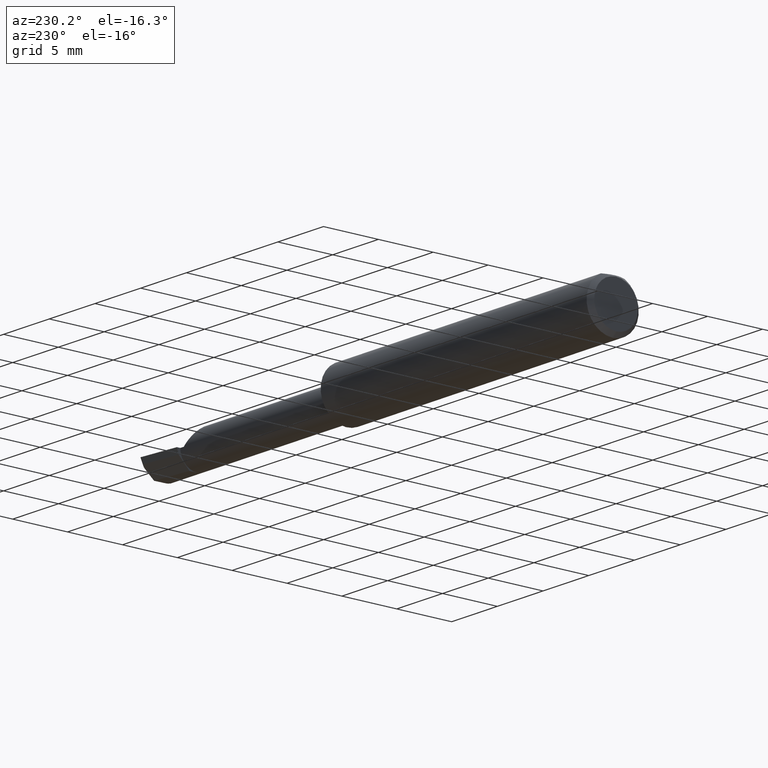
[diagram: clean part render]
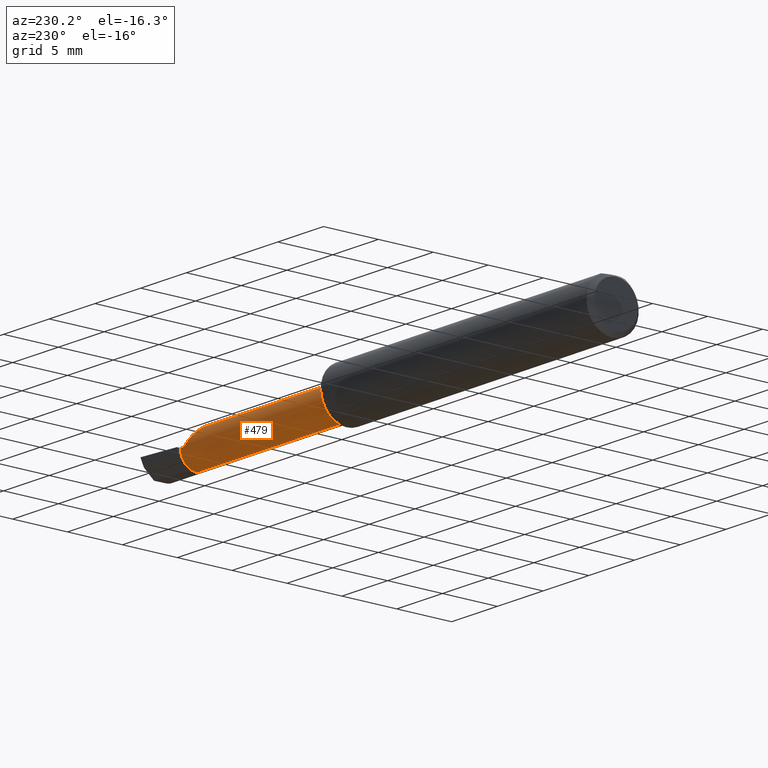
[diagram: same view with one face highlighted and labeled with its STEP entity id]
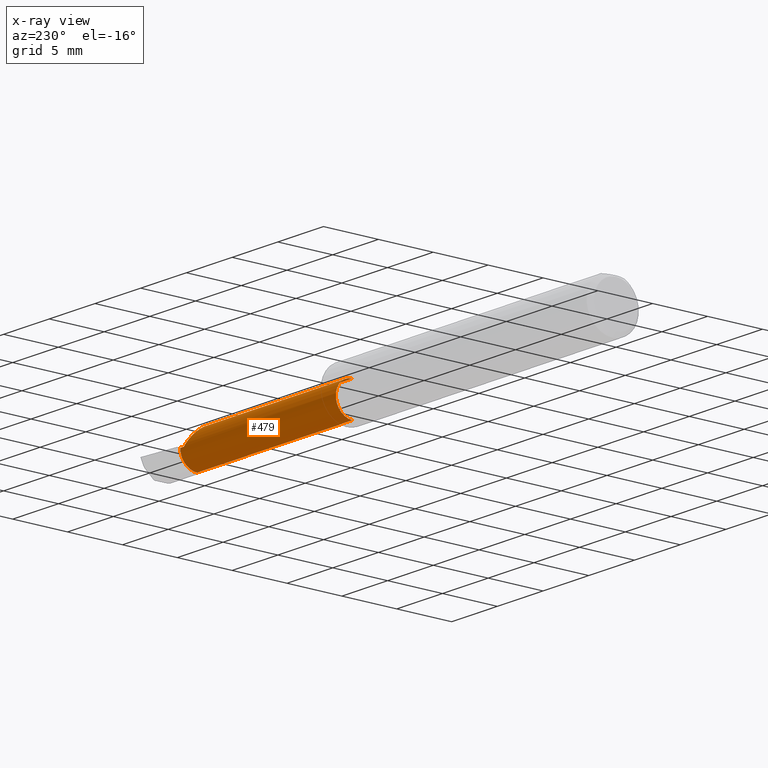
[diagram: x-ray of the same camera — body ghosted, the highlighted face saturated]
A machine part, auxiliary view. The second image highlights one B-rep face of the part: STEP entity #479.
The next image is the same camera in x-ray: the body ghosted, the highlighted face saturated — about 0% of this face is hidden behind the body in this view.
In plain terms, the highlighted cylindrical surface (edge-blend (fillet) strip) has radius 1.5215 mm, axis along (-1, -0, -0).
Its self-contained STEP definition (entity closure, byte-faithful):
#42 = DIRECTION ( 'NONE',  ( -1.000000000000000000, -0.0000000000000000000, -0.0000000000000000000 ) ) ;
#48 = DIRECTION ( 'NONE',  ( 0.0000000000000000000, 0.0000000000000000000, 1.000000000000000000 ) ) ;
#50 = VERTEX_POINT ( 'NONE', #167 ) ;
#51 = VECTOR ( 'NONE', #712, 39.37007874015748143 ) ;
#52 = AXIS2_PLACEMENT_3D ( 'NONE', #146, #628, #714 ) ;
#64 = VECTOR ( 'NONE', #485, 39.37007874015748143 ) ;
#66 = CARTESIAN_POINT ( 'NONE',  ( 1.854999999999999982, -0.04150000000000000216, 0.0000000000000000000 ) ) ;
#104 = AXIS2_PLACEMENT_3D ( 'NONE', #571, #517, #274 ) ;
#121 = ORIENTED_EDGE ( 'NONE', *, *, #194, .F. ) ;
#134 = CARTESIAN_POINT ( 'NONE',  ( 1.780099999999999349, -0.04150000000000000216, 0.05989999999999996022 ) ) ;
#143 = CARTESIAN_POINT ( 'NONE',  ( 0.0000000000000000000, -0.04150000000000000216, 0.05989999999999996022 ) ) ;
#146 = CARTESIAN_POINT ( 'NONE',  ( 0.0000000000000000000, -0.04150000000000000216, 0.0000000000000000000 ) ) ;
#150 = CARTESIAN_POINT ( 'NONE',  ( 1.185000000000000053, -0.04150000000000000216, 0.05989999999999991859 ) ) ;
#153 = LINE ( 'NONE', #143, #64 ) ;
#158 = CARTESIAN_POINT ( 'NONE',  ( 1.804911392386147506, 0.01839999999999995459, 0.03508860761385158150 ) ) ;
#161 = ORIENTED_EDGE ( 'NONE', *, *, #419, .F. ) ;
#162 = VERTEX_POINT ( 'NONE', #366 ) ;
#167 = CARTESIAN_POINT ( 'NONE',  ( 1.840000000000000080, 0.01839999999999986438, 1.959434878635762025E-17 ) ) ;
#186 = VERTEX_POINT ( 'NONE', #150 ) ;
#194 = EDGE_CURVE ( 'NONE', #186, #162, #255, .T. ) ;
#224 = EDGE_CURVE ( 'NONE', #50, #440, #724, .T. ) ;
#255 = CIRCLE ( 'NONE', #104, 0.05989999999999991859 ) ;
#264 = CARTESIAN_POINT ( 'NONE',  ( 1.840000000000000080, 0.01839999999999986438, 1.959434878635762025E-17 ) ) ;
#268 = VECTOR ( 'NONE', #677, 39.37007874015748143 ) ;
#274 = DIRECTION ( 'NONE',  ( 0.0000000000000000000, 0.0000000000000000000, 1.000000000000000000 ) ) ;
#332 = FACE_OUTER_BOUND ( 'NONE', #566, .T. ) ;
#342 = EDGE_CURVE ( 'NONE', #350, #50, #522, .T. ) ;
#350 = VERTEX_POINT ( 'NONE', #134 ) ;
#366 = CARTESIAN_POINT ( 'NONE',  ( 1.185000000000000053, -0.04149999999999999523, -0.05989999999999991859 ) ) ;
#371 = VERTEX_POINT ( 'NONE', #608 ) ;
#384 = CARTESIAN_POINT ( 'NONE',  ( 1.780099999999999349, -0.006411392386148422398, 0.05989999999999994634 ) ) ;
#419 = EDGE_CURVE ( 'NONE', #350, #186, #153, .T. ) ;
#428 = AXIS2_PLACEMENT_3D ( 'NONE', #66, #42, #48 ) ;
#429 = CARTESIAN_POINT ( 'NONE',  ( 0.0000000000000000000, -0.04149999999999999523, -0.05989999999999996022 ) ) ;
#437 = ORIENTED_EDGE ( 'NONE', *, *, #577, .T. ) ;
#440 = VERTEX_POINT ( 'NONE', #542 ) ;
#462 = LINE ( 'NONE', #429, #51 ) ;
#465 = CARTESIAN_POINT ( 'NONE',  ( 5.659797890829555466E-31, 0.01839999999999994765, 1.030335658007946046E-15 ) ) ;
#474 = EDGE_CURVE ( 'NONE', #371, #162, #462, .T. ) ;
#479 = ADVANCED_FACE ( 'NONE', ( #332 ), #514, .T. ) ;
#485 = DIRECTION ( 'NONE',  ( -1.000000000000000000, -0.0000000000000000000, -0.0000000000000000000 ) ) ;
#514 = CYLINDRICAL_SURFACE ( 'NONE', #52, 0.05989999999999996022 ) ;
#517 = DIRECTION ( 'NONE',  ( -1.000000000000000000, -0.0000000000000000000, -0.0000000000000000000 ) ) ;
#522 =( BOUNDED_CURVE ( )  B_SPLINE_CURVE ( 3, ( #690, #384, #158, #264 ),
 .UNSPECIFIED., .F., .T. ) 
 B_SPLINE_CURVE_WITH_KNOTS ( ( 4, 4 ),
 ( 0.0000000000000000000, 1.570796326794896558 ),
 .UNSPECIFIED. ) 
 CURVE ( )  GEOMETRIC_REPRESENTATION_ITEM ( )  RATIONAL_B_SPLINE_CURVE ( ( 1.000000000000000000, 0.8047378541243649375, 0.8047378541243649375, 1.000000000000000000 ) ) 
 REPRESENTATION_ITEM ( '' )  );
#542 = CARTESIAN_POINT ( 'NONE',  ( 1.854999999999999982, 0.01839999999999999969, 1.030335658007946834E-15 ) ) ;
#566 = EDGE_LOOP ( 'NONE', ( #437, #707, #121, #161, #688, #671 ) ) ;
#571 = CARTESIAN_POINT ( 'NONE',  ( 1.185000000000000053, -0.04150000000000000216, 0.0000000000000000000 ) ) ;
#577 = EDGE_CURVE ( 'NONE', #440, #371, #601, .T. ) ;
#601 = CIRCLE ( 'NONE', #428, 0.05990000000000000185 ) ;
#608 = CARTESIAN_POINT ( 'NONE',  ( 1.854999999999999982, -0.04150000000000000216, -0.05990000000000000185 ) ) ;
#628 = DIRECTION ( 'NONE',  ( -1.000000000000000000, -0.0000000000000000000, -0.0000000000000000000 ) ) ;
#671 = ORIENTED_EDGE ( 'NONE', *, *, #224, .T. ) ;
#677 = DIRECTION ( 'NONE',  ( 1.000000000000000000, 0.0000000000000000000, 0.0000000000000000000 ) ) ;
#688 = ORIENTED_EDGE ( 'NONE', *, *, #342, .T. ) ;
#690 = CARTESIAN_POINT ( 'NONE',  ( 1.780099999999999349, -0.04150000000000000216, 0.05989999999999996022 ) ) ;
#707 = ORIENTED_EDGE ( 'NONE', *, *, #474, .T. ) ;
#712 = DIRECTION ( 'NONE',  ( -1.000000000000000000, -0.0000000000000000000, -0.0000000000000000000 ) ) ;
#714 = DIRECTION ( 'NONE',  ( 0.0000000000000000000, 0.0000000000000000000, 1.000000000000000000 ) ) ;
#724 = LINE ( 'NONE', #465, #268 ) ;